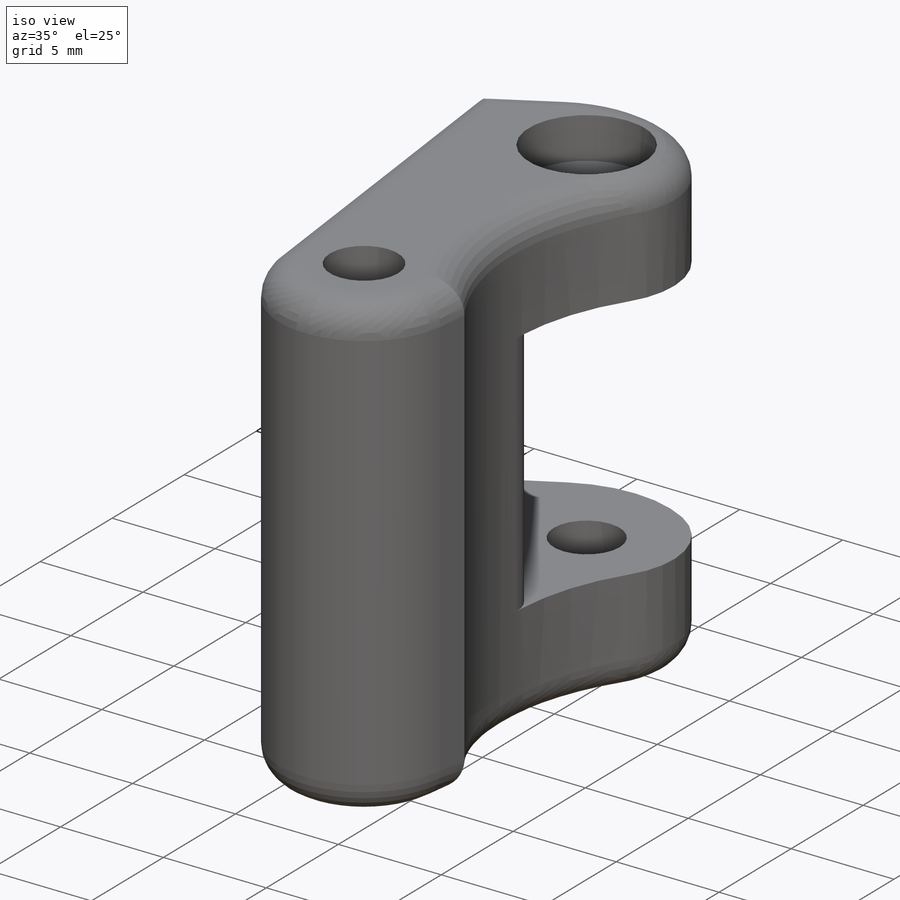
[diagram: iso view]
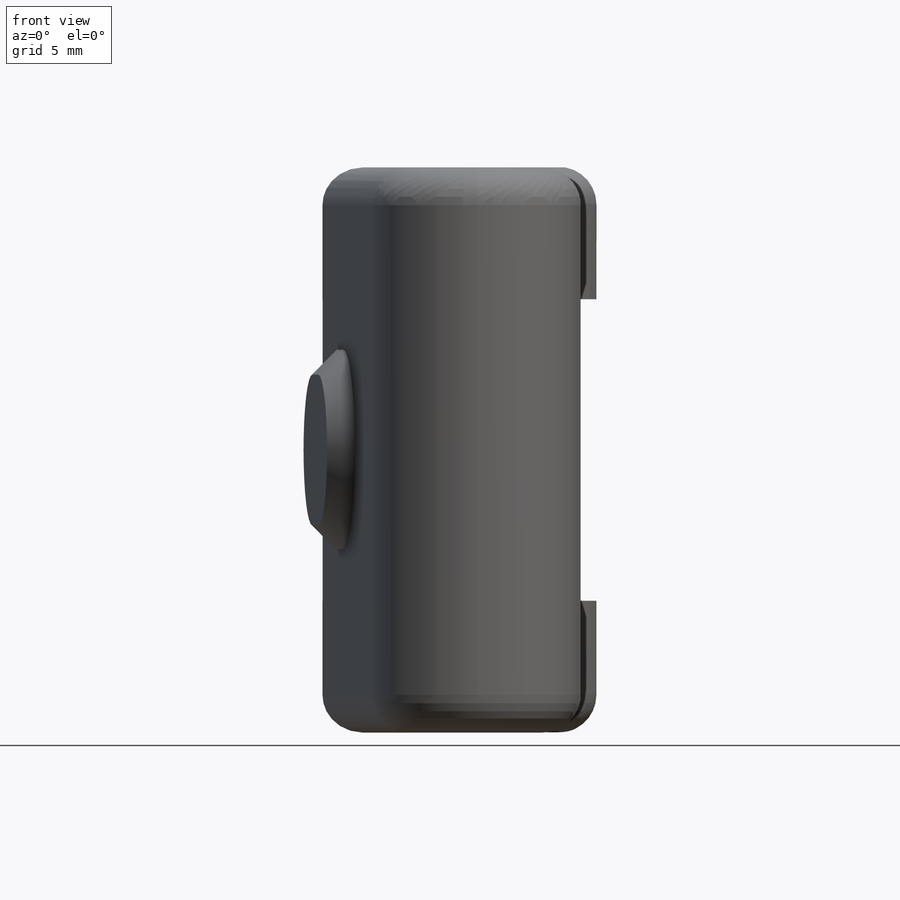
[diagram: front view]
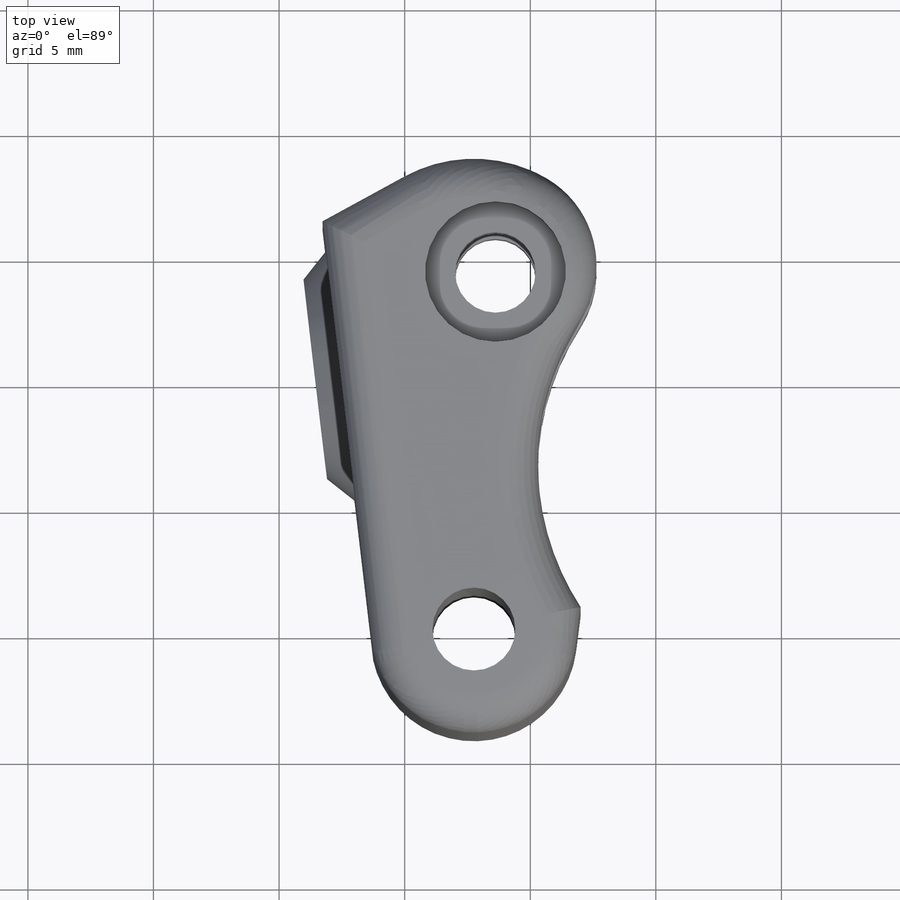
[diagram: top view]
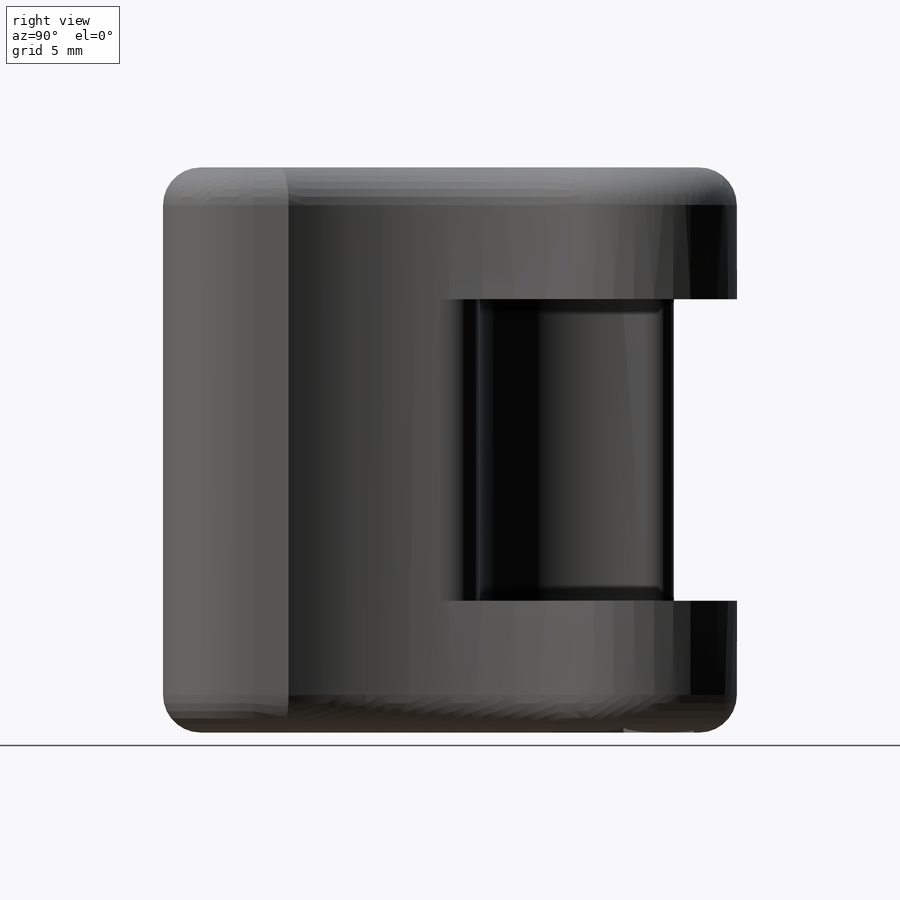
[diagram: right view]
SOLIDWORKS PART (.sldprt)
format: sldprt  version: not decoded by parser v0  size: 850,944 bytes
history: native  units: mm
features: sketch x9, cut_extrude x6, plane x3, fillet x3, extrude x2, material x1, chamfer x1 (+9 scaffold rows collapsed)
feature tree (34):
  scaffold x9  (default folders/planes/origin — collapsed)
  material  "Material <sin especificar>"
  plane  "Alzado"
  plane  "Planta"
  plane  "Vista lateral"
  sketch  "Croquis1"  dims[c1.D1=8.0mm c1.D2=3.2mm c1.D5=~3.349628mm c1.D4=11.5mm c2.D2=3.3mm c2.D1=3.3mm c2.D3=10.0mm c2.D4=3.2mm c3.D1=5.3mm c3.D2=15.2mm c4.D1=~14.179967mm c4.D2=~28.016329mm c5.D1=5.3mm c5.D2=~15.209598mm c5.D3=18.0mm c5.D4=5.0mm c5.D5=5.0mm c6.D2=5.75mm c7.D2=~125.913853deg c8.D2=~5.703687mm c9.D2=62.5deg c9.D3=1.5mm]
  extrude  "Saliente-Extruir1"  Depth=22.5mm
  sketch  "Croquis2"  dims[D1=10.0mm D2=12.0mm D3=9.0mm D4=4.0mm]
  cut_extrude  "Cortar-Extruir1"  Depth=4mm
  sketch  "Croquis8"  dims[D1=11.5mm]
  cut_extrude  "Cortar-Extruir5"  [1 undecoded]
  sketch  "Croquis9"  dims[D1=5.6mm]
  cut_extrude  "Cortar-Extruir6"  Depth=2mm
  sketch  "Croquis10"  dims[D1=5.6mm]
  cut_extrude  "Cortar-Extruir7"  Depth=2.5mm
  sketch  "Croquis11"
  cut_extrude  "Cortar-Extruir8"  [1 undecoded]
  sketch  "Croquis12"  dims[c1.D4=21.0mm c1.D1=10.0mm c1.D2=6.0mm c2.D1=20.0mm c2.D3=8.0mm c2.D5=~4.861845mm c3.D5=60.0deg c4.D5=~2.968572mm c5.D5=60.0deg]
  cut_extrude  "Cortar-Extruir9"  [1 undecoded]
  sketch  "Croquis13"  dims[c1.D1=~3.86909mm c2.D1=30.0deg c2.D2=~6.42274mm c2.D3=5.0mm]
  fillet  "Redondeo4"  Radius=4mm
  fillet  "Redondeo3"  Radius=1mm
  fillet  "Redondeo5"  Radius=1.5mm
  sketch  "Croquis15"  dims[c1.D1=5.0mm c1.D3=5.0mm c2.D1=3.0mm c2.D6=2.5mm c2.D3=3.0mm c2.D2=5.0mm c2.D4=2.0mm c2.D5=2.0mm c3.D6=2.0mm]
  extrude  "Saliente-Extruir2"  Depth=1mm
  chamfer  "Chaflán1"  Distance=1mm Angle=45deg
decode coverage: 17 of 21 modeling features carry decoded parameters
note: ~ marks probable driven/reference dimensions
note: 3 parameter values undecoded
summary: no parameter record found for 3 features
note: suppression state not decoded; provenance and decode notes live in map.json
